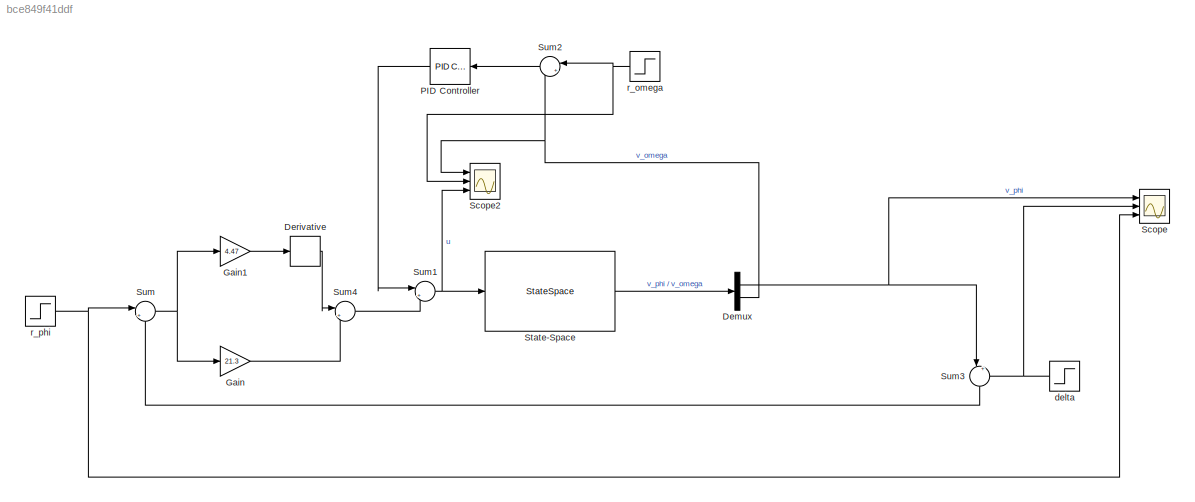
MODEL slx_bce849f41ddf
KIND model
CONFIG AbsTol = auto
CONFIG EnableMultiTasking = off
CONFIG FixedStep = auto
CONFIG MaxStep = 0.08
CONFIG MinStep = auto
CONFIG RelTol = 1e-3
CONFIG SampleTimeConstraint = Unconstrained
CONFIG SolverName = ode45
CONFIG StartTime = 0.0
CONFIG StopTime = 4
BLOCK [Demux] Demux
  Outputs = 2
  Ports = [1, 2]
BLOCK [Derivative] Derivative
BLOCK [Gain] Gain
  Gain = 21.3
BLOCK [Gain] Gain1
  Gain = 4.47
BLOCK [Reference] PID Controller  REF=pid_lib/PID Controller
  NameLocation = top
  Ports = [1, 1]
  SourceBlock = pid_lib/PID Controller
  SourceProductBaseCode = SL
  SourceType = PID 1dof
BLOCK [Scope] Scope
  Floating = off
  NumInputPorts = 3
  Ports = [3]
  ScopeSpecificationString = Simulink.scopes.TimeScopeBlockCfg('CurrentConfiguration', extmgr.ConfigurationSet(extmgr.Configuration('Core','General UI',true),extmgr.Configuration('Core','Source UI',true),extmgr.Configuration('Sources','WiredSimulink',true),extmgr.Configuration('Visuals','Time Domain',true,'SerializedDisplays',{struct('MinYLimReal','-0.21205','MaxYLimReal','0.27315','YLabelReal','','MinYLimMag','0.00000','MaxY...<+1369ch>
BLOCK [Scope] Scope2
  Floating = off
  NumInputPorts = 3
  Ports = [3]
  ScopeSpecificationString = Simulink.scopes.TimeScopeBlockCfg('CurrentConfiguration', extmgr.ConfigurationSet(extmgr.Configuration('Core','General UI',true),extmgr.Configuration('Core','Source UI',true),extmgr.Configuration('Sources','WiredSimulink',true,'DataLoggingVariableName','ScopeData1'),extmgr.Configuration('Visuals','Time Domain',true,'SerializedDisplays',{struct('MinYLimReal','-8.12681','MaxYLimReal','22.27159','YLa...<+1523ch>
BLOCK [StateSpace] State-Space
  A = [0 1 0; 23.5031 0 0.0045; -23.5031 0 -19.9513]
  B = [0; 0.1393; -621.6819]
  C = [107.47 0 0; 0 0 1/30]
  D = [0; 0]
  InitialCondition = [0.0019 0 0]
  Ports = [1, 1]
BLOCK [Sum] Sum
  Inputs = |+-
  Ports = [2, 1]
BLOCK [Sum] Sum1
  Inputs = |++
  Ports = [2, 1]
BLOCK [Sum] Sum2
  Inputs = |+-
  NameLocation = top
  Ports = [2, 1]
BLOCK [Sum] Sum3
  Inputs = |++
  NameLocation = left
  Ports = [2, 1]
BLOCK [Sum] Sum4
  Inputs = |++
  Ports = [2, 1]
BLOCK [Step] delta
  After = 0.2
  NameLocation = top
  SampleTime = 0
  Time = 1.5
BLOCK [Step] r_omega
  After = 2.5
  NameLocation = top
  SampleTime = 0
  Time = 2.5
BLOCK [Step] r_phi
  After = 0
  SampleTime = 0
  Time = 0
NET Demux:1 -> Scope:1, Sum3:1
NET Demux:2 -> Scope2:1, Sum2:2
LINE Derivative:1 -> Sum4:1
LINE Gain1:1 -> Derivative:1
LINE Gain:1 -> Sum4:2
LINE PID Controller:1 -> Sum1:1
LINE State-Space:1 -> Demux:1
NET Sum1:1 -> Scope2:3, State-Space:1
LINE Sum2:1 -> PID Controller:1
LINE Sum3:1 -> Sum:2
LINE Sum4:1 -> Sum1:2
NET Sum:1 -> Gain1:1, Gain:1
NET delta:1 -> Scope:2, Sum3:2
NET r_omega:1 -> Scope2:2, Sum2:1
NET r_phi:1 -> Scope:3, Sum:1
note: NET lines group one-source signal fan-out (src -> all destinations, sorted); 1:1 wires keep LINE
